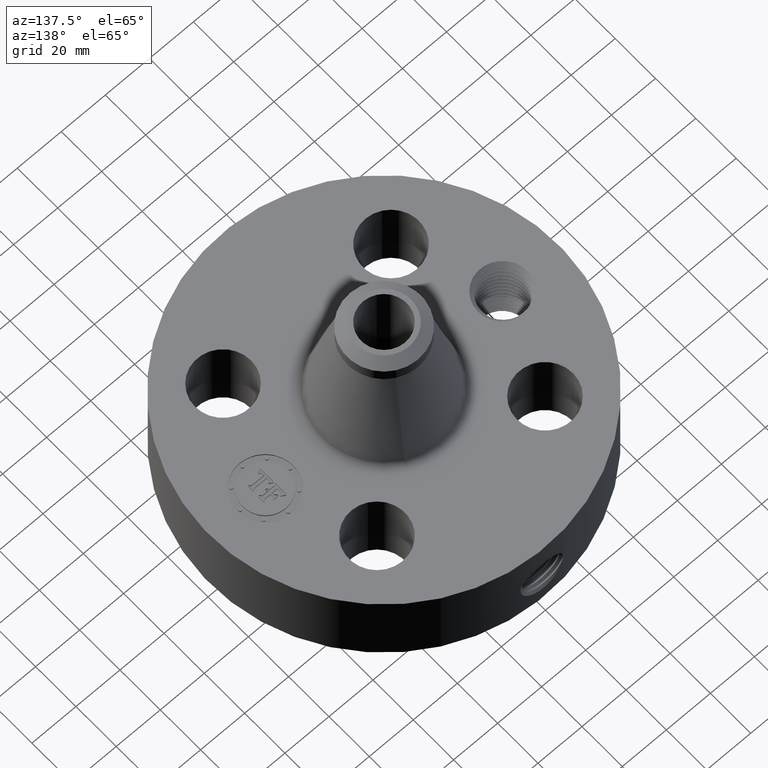
[diagram: clean part render]
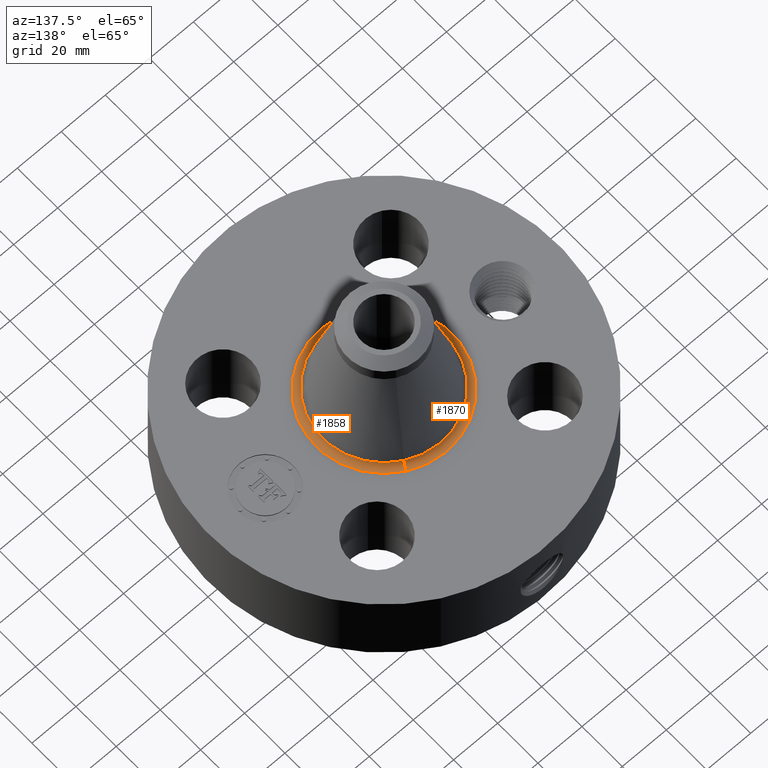
[diagram: same view with one multi-face feature highlighted, each face labeled with its STEP entity id]
A machine part, auxiliary view. The highlighted faces form ONE feature: a constant-radius fillet chain: 2 tangent blend faces with common blend radius 3.048 mm. The faces share edges in the B-rep.
Their STEP definitions:
[1] entity #1858 (Torus):
#496=AXIS2_PLACEMENT_3D('Circle Axis2P3D',#494,#495,$) ;
#1831=AXIS2_PLACEMENT_3D('Torus Axis2P3D',#1828,#1829,#1830) ;
#1835=AXIS2_PLACEMENT_3D('Circle Axis2P3D',#1833,#1834,$) ;
#1842=AXIS2_PLACEMENT_3D('Circle Axis2P3D',#1840,#1841,$) ;
#1849=AXIS2_PLACEMENT_3D('Circle Axis2P3D',#1847,#1848,$) ;
#489=CARTESIAN_POINT('Vertex',(-0.583597211263,-1.06826752964,1.75000000001)) ;
#491=CARTESIAN_POINT('Vertex',(0.583597211263,1.06826752964,1.75000000001)) ;
#494=CARTESIAN_POINT('Axis2P3D Location',(0.,0.,1.75000000001)) ;
#1828=CARTESIAN_POINT('Axis2P3D Location',(0.,0.,1.87000000001)) ;
#1833=CARTESIAN_POINT('Axis2P3D Location',(0.583597211263,1.06826752964,1.87000000001)) ;
#1837=CARTESIAN_POINT('Vertex',(0.527994584647,0.966487604326,1.83919099619)) ;
#1840=CARTESIAN_POINT('Axis2P3D Location',(0.,0.,1.83919099619)) ;
#1844=CARTESIAN_POINT('Vertex',(-0.527994584647,-0.966487604326,1.83919099619)) ;
#1847=CARTESIAN_POINT('Axis2P3D Location',(-0.583597211263,-1.06826752964,1.87000000001)) ;
#495=DIRECTION('Axis2P3D Direction',(0.,0.,-0.0393700787402)) ;
#1829=DIRECTION('Axis2P3D Direction',(0.,0.,-0.0393700787402)) ;
#1830=DIRECTION('Axis2P3D XDirection',(-0.0188750212049,-0.0345504945626,0.)) ;
#1834=DIRECTION('Axis2P3D Direction',(-0.0345504945626,0.0188750212049,0.)) ;
#1841=DIRECTION('Axis2P3D Direction',(0.,0.,-0.0393700787402)) ;
#1848=DIRECTION('Axis2P3D Direction',(0.0345504945626,-0.0188750212049,0.)) ;
#1853=ORIENTED_EDGE('',*,*,#498,.F.) ;
#1854=ORIENTED_EDGE('',*,*,#1839,.T.) ;
#1855=ORIENTED_EDGE('',*,*,#1846,.T.) ;
#1856=ORIENTED_EDGE('',*,*,#1851,.F.) ;
#1858=ADVANCED_FACE('PartBody',(#1857),#1832,.F.) ;
#497=CIRCLE('generated circle',#496,1.21728436279) ;
#1836=CIRCLE('generated circle',#1835,0.12) ;
#1843=CIRCLE('generated circle',#1842,1.10130675596) ;
#1850=CIRCLE('generated circle',#1849,0.12) ;
#1832=TOROIDAL_SURFACE('homeo Torus',#1831,1.21728436279,0.12) ;
#498=EDGE_CURVE('',#492,#490,#497,.T.) ;
#1839=EDGE_CURVE('',#492,#1838,#1836,.T.) ;
#1846=EDGE_CURVE('',#1838,#1845,#1843,.T.) ;
#1851=EDGE_CURVE('',#490,#1845,#1850,.T.) ;
#1852=EDGE_LOOP('',(#1853,#1854,#1855,#1856)) ;
#1857=FACE_OUTER_BOUND('',#1852,.T.) ;
#490=VERTEX_POINT('',#489) ;
#492=VERTEX_POINT('',#491) ;
#1838=VERTEX_POINT('',#1837) ;
#1845=VERTEX_POINT('',#1844) ;
[2] entity #1870 (Torus):
#487=AXIS2_PLACEMENT_3D('Circle Axis2P3D',#485,#486,$) ;
#1831=AXIS2_PLACEMENT_3D('Torus Axis2P3D',#1828,#1829,#1830) ;
#1835=AXIS2_PLACEMENT_3D('Circle Axis2P3D',#1833,#1834,$) ;
#1849=AXIS2_PLACEMENT_3D('Circle Axis2P3D',#1847,#1848,$) ;
#1861=AXIS2_PLACEMENT_3D('Circle Axis2P3D',#1859,#1860,$) ;
#485=CARTESIAN_POINT('Axis2P3D Location',(0.,0.,1.75000000001)) ;
#489=CARTESIAN_POINT('Vertex',(-0.583597211263,-1.06826752964,1.75000000001)) ;
#491=CARTESIAN_POINT('Vertex',(0.583597211263,1.06826752964,1.75000000001)) ;
#1828=CARTESIAN_POINT('Axis2P3D Location',(0.,0.,1.87000000001)) ;
#1833=CARTESIAN_POINT('Axis2P3D Location',(0.583597211263,1.06826752964,1.87000000001)) ;
#1837=CARTESIAN_POINT('Vertex',(0.527994584647,0.966487604326,1.83919099619)) ;
#1844=CARTESIAN_POINT('Vertex',(-0.527994584647,-0.966487604326,1.83919099619)) ;
#1847=CARTESIAN_POINT('Axis2P3D Location',(-0.583597211263,-1.06826752964,1.87000000001)) ;
#1859=CARTESIAN_POINT('Axis2P3D Location',(0.,0.,1.83919099619)) ;
#486=DIRECTION('Axis2P3D Direction',(0.,0.,-0.0393700787402)) ;
#1829=DIRECTION('Axis2P3D Direction',(0.,0.,-0.0393700787402)) ;
#1830=DIRECTION('Axis2P3D XDirection',(-0.0188750212049,-0.0345504945626,0.)) ;
#1834=DIRECTION('Axis2P3D Direction',(-0.0345504945626,0.0188750212049,0.)) ;
#1848=DIRECTION('Axis2P3D Direction',(0.0345504945626,-0.0188750212049,0.)) ;
#1860=DIRECTION('Axis2P3D Direction',(0.,0.,-0.0393700787402)) ;
#1865=ORIENTED_EDGE('',*,*,#493,.F.) ;
#1866=ORIENTED_EDGE('',*,*,#1851,.T.) ;
#1867=ORIENTED_EDGE('',*,*,#1863,.T.) ;
#1868=ORIENTED_EDGE('',*,*,#1839,.F.) ;
#1870=ADVANCED_FACE('PartBody',(#1869),#1832,.F.) ;
#488=CIRCLE('generated circle',#487,1.21728436279) ;
#1836=CIRCLE('generated circle',#1835,0.12) ;
#1850=CIRCLE('generated circle',#1849,0.12) ;
#1862=CIRCLE('generated circle',#1861,1.10130675596) ;
#1832=TOROIDAL_SURFACE('homeo Torus',#1831,1.21728436279,0.12) ;
#493=EDGE_CURVE('',#490,#492,#488,.T.) ;
#1839=EDGE_CURVE('',#492,#1838,#1836,.T.) ;
#1851=EDGE_CURVE('',#490,#1845,#1850,.T.) ;
#1863=EDGE_CURVE('',#1845,#1838,#1862,.T.) ;
#1864=EDGE_LOOP('',(#1865,#1866,#1867,#1868)) ;
#1869=FACE_OUTER_BOUND('',#1864,.T.) ;
#490=VERTEX_POINT('',#489) ;
#492=VERTEX_POINT('',#491) ;
#1838=VERTEX_POINT('',#1837) ;
#1845=VERTEX_POINT('',#1844) ;